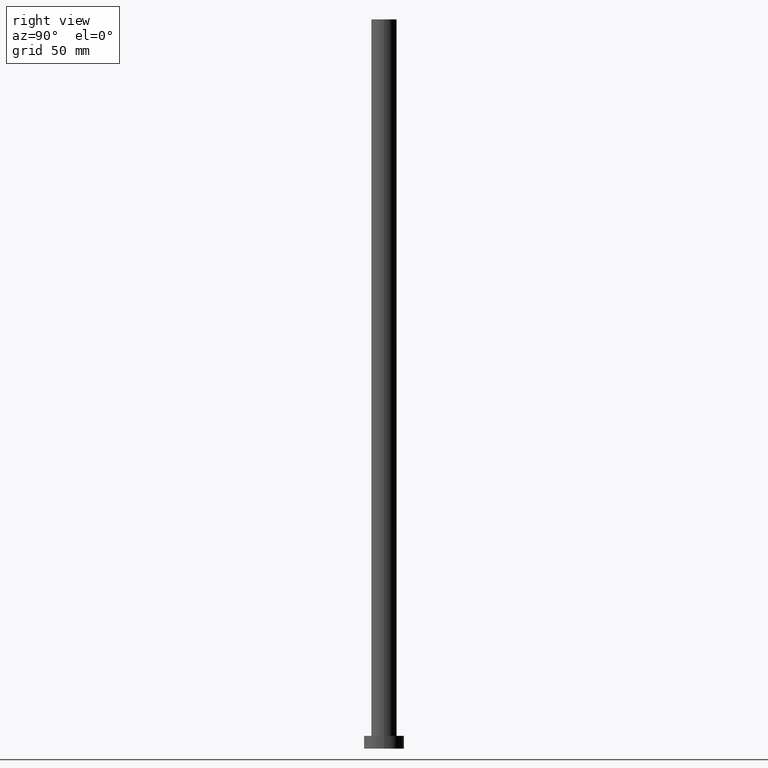
[diagram: clean part render]
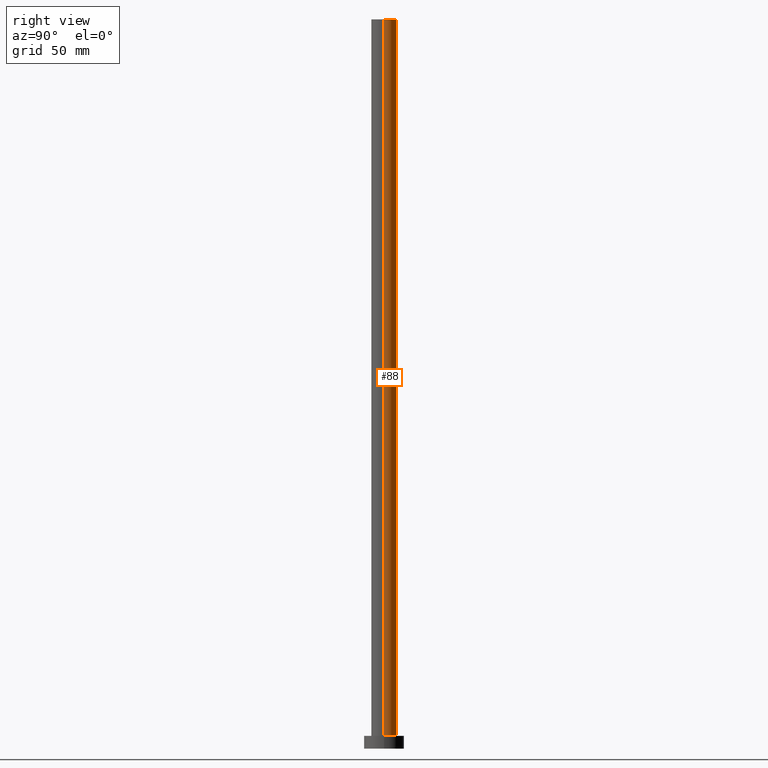
[diagram: same view with one face highlighted and labeled with its STEP entity id]
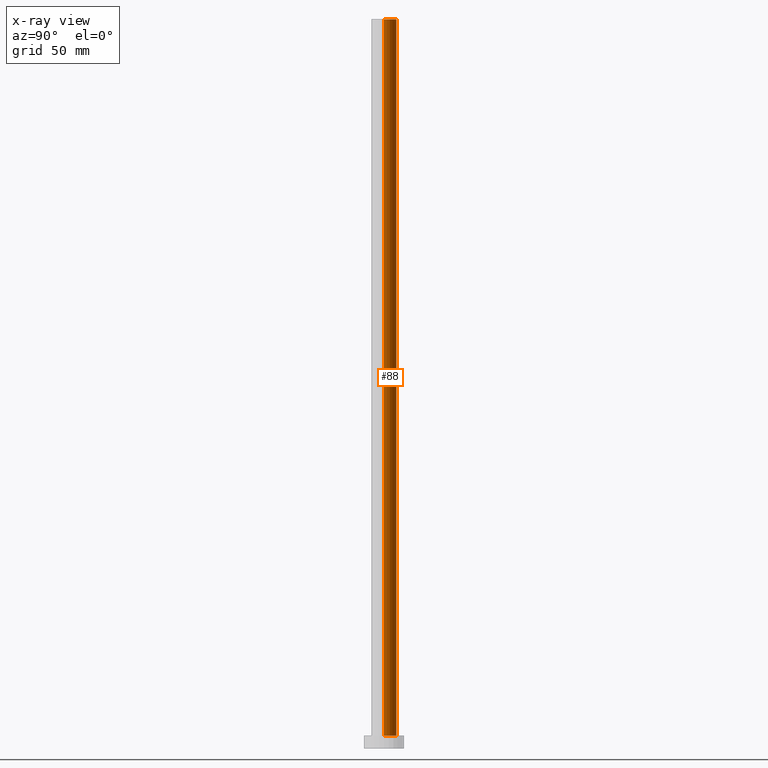
[diagram: x-ray of the same camera — body ghosted, the highlighted face saturated]
A machine part, right view. The second image highlights one B-rep face of the part: STEP entity #88.
The next image is the same camera in x-ray: the body ghosted, the highlighted face saturated — about 0% of this face is hidden behind the body in this view.
In plain terms, the highlighted cylindrical surface (edge-blend (fillet) strip) has radius 7 mm, axis along (-0, -0, -1).
Its self-contained STEP definition (entity closure, byte-faithful):
#7 = AXIS2_PLACEMENT_3D ( 'NONE', #18, #90, #253 ) ;
#8 = DIRECTION ( 'NONE',  ( 0.000000000000000000, 0.000000000000000000, 1.000000000000000000 ) ) ;
#14 = AXIS2_PLACEMENT_3D ( 'NONE', #202, #8, #43 ) ;
#16 = DIRECTION ( 'NONE',  ( -0.000000000000000000, -0.000000000000000000, -1.000000000000000000 ) ) ;
#18 = CARTESIAN_POINT ( 'NONE',  ( 0.000000000000000000, 0.000000000000000000, 7.000000000000000000 ) ) ;
#29 = FACE_OUTER_BOUND ( 'NONE', #118, .T. ) ;
#43 = DIRECTION ( 'NONE',  ( 1.000000000000000000, 0.000000000000000000, 0.000000000000000000 ) ) ;
#44 = EDGE_CURVE ( 'NONE', #140, #180, #115, .T. ) ;
#46 = DIRECTION ( 'NONE',  ( -0.000000000000000000, -0.000000000000000000, -1.000000000000000000 ) ) ;
#50 = LINE ( 'NONE', #231, #157 ) ;
#52 = DIRECTION ( 'NONE',  ( -1.000000000000000000, 0.000000000000000000, 0.000000000000000000 ) ) ;
#59 = VERTEX_POINT ( 'NONE', #62 ) ;
#62 = CARTESIAN_POINT ( 'NONE',  ( 7.000000000000000888, 8.572527594031474176E-16, 7.000000000000000000 ) ) ;
#77 = EDGE_CURVE ( 'NONE', #180, #204, #160, .T. ) ;
#85 = CARTESIAN_POINT ( 'NONE',  ( -7.000000000000000888, 0.000000000000000000, 7.000000000000000000 ) ) ;
#88 = ADVANCED_FACE ( 'NONE', ( #29 ), #168, .T. ) ;
#90 = DIRECTION ( 'NONE',  ( 0.000000000000000000, 0.000000000000000000, 1.000000000000000000 ) ) ;
#102 = ORIENTED_EDGE ( 'NONE', *, *, #197, .T. ) ;
#114 = ORIENTED_EDGE ( 'NONE', *, *, #77, .F. ) ;
#115 = CIRCLE ( 'NONE', #14, 7.000000000000000888 ) ;
#118 = EDGE_LOOP ( 'NONE', ( #243, #178, #102, #114 ) ) ;
#125 = EDGE_CURVE ( 'NONE', #140, #59, #50, .T. ) ;
#140 = VERTEX_POINT ( 'NONE', #150 ) ;
#146 = CIRCLE ( 'NONE', #7, 7.000000000000000888 ) ;
#147 = CARTESIAN_POINT ( 'NONE',  ( -7.000000000000000888, 0.000000000000000000, 400.0000000000000000 ) ) ;
#150 = CARTESIAN_POINT ( 'NONE',  ( 7.000000000000000888, 8.572527594031474176E-16, 400.0000000000000000 ) ) ;
#157 = VECTOR ( 'NONE', #205, 1000.000000000000000 ) ;
#160 = LINE ( 'NONE', #223, #170 ) ;
#168 = CYLINDRICAL_SURFACE ( 'NONE', #225, 7.000000000000000888 ) ;
#170 = VECTOR ( 'NONE', #46, 1000.000000000000000 ) ;
#178 = ORIENTED_EDGE ( 'NONE', *, *, #125, .T. ) ;
#180 = VERTEX_POINT ( 'NONE', #147 ) ;
#197 = EDGE_CURVE ( 'NONE', #59, #204, #146, .T. ) ;
#202 = CARTESIAN_POINT ( 'NONE',  ( 0.000000000000000000, 0.000000000000000000, 400.0000000000000000 ) ) ;
#204 = VERTEX_POINT ( 'NONE', #85 ) ;
#205 = DIRECTION ( 'NONE',  ( -0.000000000000000000, -0.000000000000000000, -1.000000000000000000 ) ) ;
#210 = CARTESIAN_POINT ( 'NONE',  ( 0.000000000000000000, 0.000000000000000000, 400.0000000000000000 ) ) ;
#223 = CARTESIAN_POINT ( 'NONE',  ( -7.000000000000000888, 0.000000000000000000, 400.0000000000000000 ) ) ;
#225 = AXIS2_PLACEMENT_3D ( 'NONE', #210, #16, #52 ) ;
#231 = CARTESIAN_POINT ( 'NONE',  ( 7.000000000000000888, 8.572527594031474176E-16, 400.0000000000000000 ) ) ;
#243 = ORIENTED_EDGE ( 'NONE', *, *, #44, .F. ) ;
#253 = DIRECTION ( 'NONE',  ( 1.000000000000000000, 0.000000000000000000, 0.000000000000000000 ) ) ;